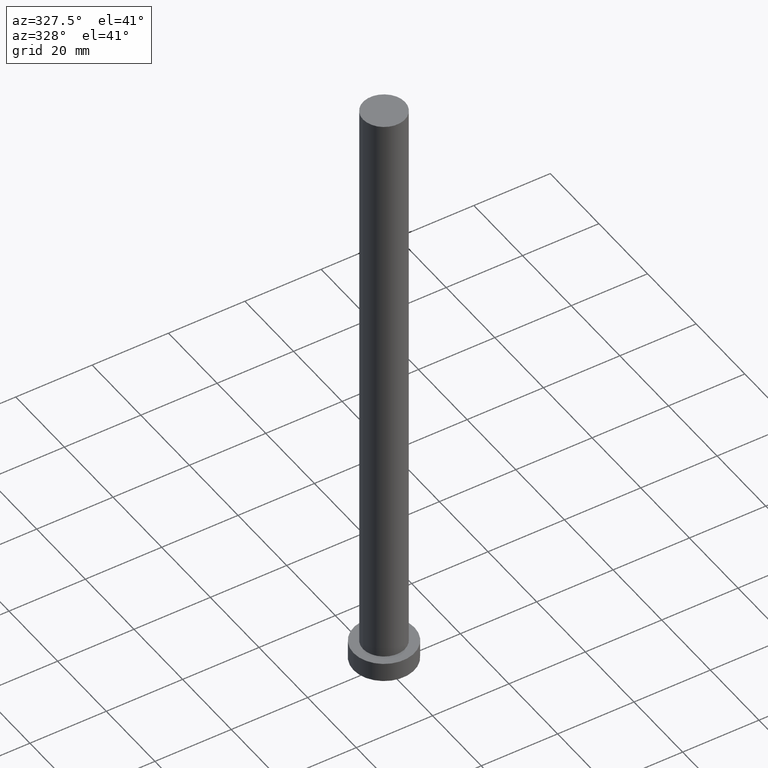
[diagram: clean part render]
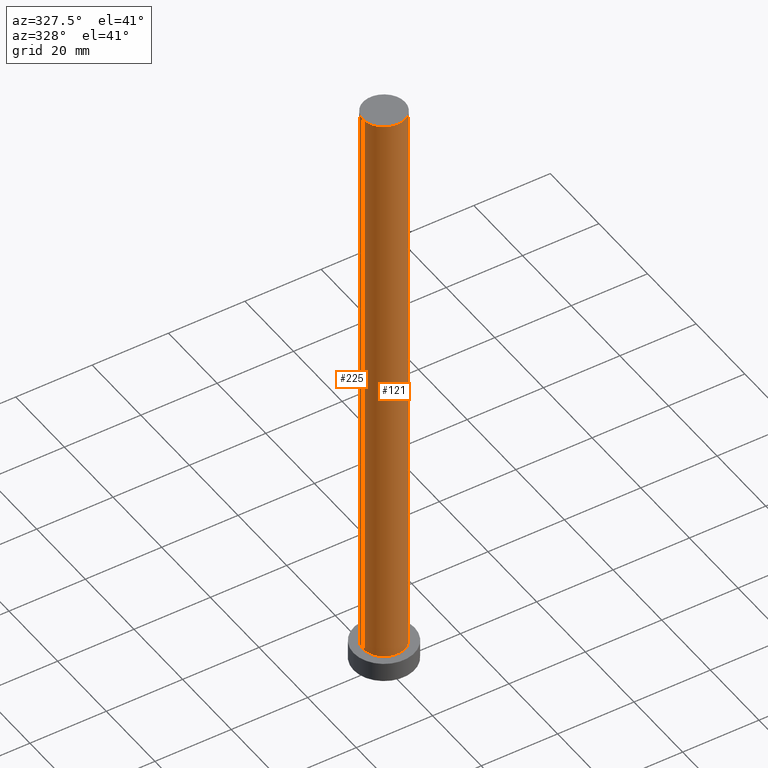
[diagram: same view with one multi-face feature highlighted, each face labeled with its STEP entity id]
A machine part, auxiliary view. The highlighted faces form ONE feature: a constant-radius fillet chain: 2 tangent blend faces with common blend radius 5.5 mm. The faces share edges in the B-rep.
Their STEP definitions:
[1] entity #121 (Cylinder):
#2 = AXIS2_PLACEMENT_3D ( 'NONE', #224, #53, #130 ) ;
#11 = VERTEX_POINT ( 'NONE', #132 ) ;
#25 = CARTESIAN_POINT ( 'NONE',  ( -5.500000000000000000, 0.000000000000000000, 5.000000000000000000 ) ) ;
#31 = ORIENTED_EDGE ( 'NONE', *, *, #91, .F. ) ;
#32 = EDGE_CURVE ( 'NONE', #165, #217, #195, .T. ) ;
#36 = DIRECTION ( 'NONE',  ( 1.000000000000000000, 0.000000000000000000, 0.000000000000000000 ) ) ;
#37 = DIRECTION ( 'NONE',  ( 0.000000000000000000, 0.000000000000000000, 1.000000000000000000 ) ) ;
#40 = CARTESIAN_POINT ( 'NONE',  ( 5.500000000000000000, 6.735557395310442023E-16, 160.0000000000000000 ) ) ;
#43 = LINE ( 'NONE', #40, #90 ) ;
#47 = ORIENTED_EDGE ( 'NONE', *, *, #240, .F. ) ;
#53 = DIRECTION ( 'NONE',  ( -0.000000000000000000, -0.000000000000000000, -1.000000000000000000 ) ) ;
#67 = VERTEX_POINT ( 'NONE', #97 ) ;
#70 = ORIENTED_EDGE ( 'NONE', *, *, #32, .T. ) ;
#75 = DIRECTION ( 'NONE',  ( 1.000000000000000000, 0.000000000000000000, 0.000000000000000000 ) ) ;
#80 = EDGE_LOOP ( 'NONE', ( #47, #31, #168, #70 ) ) ;
#90 = VECTOR ( 'NONE', #189, 1000.000000000000000 ) ;
#91 = EDGE_CURVE ( 'NONE', #11, #67, #100, .T. ) ;
#97 = CARTESIAN_POINT ( 'NONE',  ( 5.500000000000000000, 6.735557395310442023E-16, 160.0000000000000000 ) ) ;
#98 = CYLINDRICAL_SURFACE ( 'NONE', #2, 5.500000000000000000 ) ;
#100 = CIRCLE ( 'NONE', #106, 5.500000000000000000 ) ;
#106 = AXIS2_PLACEMENT_3D ( 'NONE', #107, #37, #75 ) ;
#107 = CARTESIAN_POINT ( 'NONE',  ( 0.000000000000000000, 0.000000000000000000, 160.0000000000000000 ) ) ;
#121 = ADVANCED_FACE ( 'NONE', ( #221 ), #98, .T. ) ;
#130 = DIRECTION ( 'NONE',  ( -1.000000000000000000, 0.000000000000000000, 0.000000000000000000 ) ) ;
#132 = CARTESIAN_POINT ( 'NONE',  ( -5.500000000000000000, 0.000000000000000000, 160.0000000000000000 ) ) ;
#165 = VERTEX_POINT ( 'NONE', #25 ) ;
#168 = ORIENTED_EDGE ( 'NONE', *, *, #211, .T. ) ;
#169 = CARTESIAN_POINT ( 'NONE',  ( 0.000000000000000000, 0.000000000000000000, 5.000000000000000000 ) ) ;
#189 = DIRECTION ( 'NONE',  ( -0.000000000000000000, -0.000000000000000000, -1.000000000000000000 ) ) ;
#191 = VECTOR ( 'NONE', #255, 1000.000000000000000 ) ;
#195 = CIRCLE ( 'NONE', #202, 5.500000000000000000 ) ;
#202 = AXIS2_PLACEMENT_3D ( 'NONE', #169, #209, #36 ) ;
#209 = DIRECTION ( 'NONE',  ( 0.000000000000000000, 0.000000000000000000, 1.000000000000000000 ) ) ;
#211 = EDGE_CURVE ( 'NONE', #11, #165, #231, .T. ) ;
#217 = VERTEX_POINT ( 'NONE', #233 ) ;
#221 = FACE_OUTER_BOUND ( 'NONE', #80, .T. ) ;
#224 = CARTESIAN_POINT ( 'NONE',  ( 0.000000000000000000, 0.000000000000000000, 160.0000000000000000 ) ) ;
#230 = CARTESIAN_POINT ( 'NONE',  ( -5.500000000000000000, 0.000000000000000000, 160.0000000000000000 ) ) ;
#231 = LINE ( 'NONE', #230, #191 ) ;
#233 = CARTESIAN_POINT ( 'NONE',  ( 5.500000000000000000, 6.735557395310442023E-16, 5.000000000000000000 ) ) ;
#240 = EDGE_CURVE ( 'NONE', #67, #217, #43, .T. ) ;
#255 = DIRECTION ( 'NONE',  ( -0.000000000000000000, -0.000000000000000000, -1.000000000000000000 ) ) ;
[2] entity #225 (Cylinder):
#11 = VERTEX_POINT ( 'NONE', #132 ) ;
#22 = DIRECTION ( 'NONE',  ( 1.000000000000000000, 0.000000000000000000, 0.000000000000000000 ) ) ;
#25 = CARTESIAN_POINT ( 'NONE',  ( -5.500000000000000000, 0.000000000000000000, 5.000000000000000000 ) ) ;
#30 = EDGE_CURVE ( 'NONE', #67, #11, #124, .T. ) ;
#33 = ORIENTED_EDGE ( 'NONE', *, *, #167, .T. ) ;
#40 = CARTESIAN_POINT ( 'NONE',  ( 5.500000000000000000, 6.735557395310442023E-16, 160.0000000000000000 ) ) ;
#43 = LINE ( 'NONE', #40, #90 ) ;
#57 = DIRECTION ( 'NONE',  ( 1.000000000000000000, 0.000000000000000000, 0.000000000000000000 ) ) ;
#58 = AXIS2_PLACEMENT_3D ( 'NONE', #60, #212, #179 ) ;
#60 = CARTESIAN_POINT ( 'NONE',  ( 0.000000000000000000, 0.000000000000000000, 160.0000000000000000 ) ) ;
#67 = VERTEX_POINT ( 'NONE', #97 ) ;
#69 = CIRCLE ( 'NONE', #204, 5.500000000000000000 ) ;
#90 = VECTOR ( 'NONE', #189, 1000.000000000000000 ) ;
#97 = CARTESIAN_POINT ( 'NONE',  ( 5.500000000000000000, 6.735557395310442023E-16, 160.0000000000000000 ) ) ;
#105 = ORIENTED_EDGE ( 'NONE', *, *, #240, .T. ) ;
#119 = CYLINDRICAL_SURFACE ( 'NONE', #58, 5.500000000000000000 ) ;
#124 = CIRCLE ( 'NONE', #238, 5.500000000000000000 ) ;
#132 = CARTESIAN_POINT ( 'NONE',  ( -5.500000000000000000, 0.000000000000000000, 160.0000000000000000 ) ) ;
#147 = DIRECTION ( 'NONE',  ( 0.000000000000000000, 0.000000000000000000, 1.000000000000000000 ) ) ;
#163 = EDGE_LOOP ( 'NONE', ( #181, #105, #33, #249 ) ) ;
#165 = VERTEX_POINT ( 'NONE', #25 ) ;
#167 = EDGE_CURVE ( 'NONE', #217, #165, #69, .T. ) ;
#173 = DIRECTION ( 'NONE',  ( 0.000000000000000000, 0.000000000000000000, 1.000000000000000000 ) ) ;
#179 = DIRECTION ( 'NONE',  ( -1.000000000000000000, 0.000000000000000000, 0.000000000000000000 ) ) ;
#181 = ORIENTED_EDGE ( 'NONE', *, *, #30, .F. ) ;
#185 = CARTESIAN_POINT ( 'NONE',  ( 0.000000000000000000, 0.000000000000000000, 160.0000000000000000 ) ) ;
#189 = DIRECTION ( 'NONE',  ( -0.000000000000000000, -0.000000000000000000, -1.000000000000000000 ) ) ;
#191 = VECTOR ( 'NONE', #255, 1000.000000000000000 ) ;
#193 = CARTESIAN_POINT ( 'NONE',  ( 0.000000000000000000, 0.000000000000000000, 5.000000000000000000 ) ) ;
#204 = AXIS2_PLACEMENT_3D ( 'NONE', #193, #173, #22 ) ;
#211 = EDGE_CURVE ( 'NONE', #11, #165, #231, .T. ) ;
#212 = DIRECTION ( 'NONE',  ( -0.000000000000000000, -0.000000000000000000, -1.000000000000000000 ) ) ;
#217 = VERTEX_POINT ( 'NONE', #233 ) ;
#225 = ADVANCED_FACE ( 'NONE', ( #254 ), #119, .T. ) ;
#230 = CARTESIAN_POINT ( 'NONE',  ( -5.500000000000000000, 0.000000000000000000, 160.0000000000000000 ) ) ;
#231 = LINE ( 'NONE', #230, #191 ) ;
#233 = CARTESIAN_POINT ( 'NONE',  ( 5.500000000000000000, 6.735557395310442023E-16, 5.000000000000000000 ) ) ;
#238 = AXIS2_PLACEMENT_3D ( 'NONE', #185, #147, #57 ) ;
#240 = EDGE_CURVE ( 'NONE', #67, #217, #43, .T. ) ;
#249 = ORIENTED_EDGE ( 'NONE', *, *, #211, .F. ) ;
#254 = FACE_OUTER_BOUND ( 'NONE', #163, .T. ) ;
#255 = DIRECTION ( 'NONE',  ( -0.000000000000000000, -0.000000000000000000, -1.000000000000000000 ) ) ;